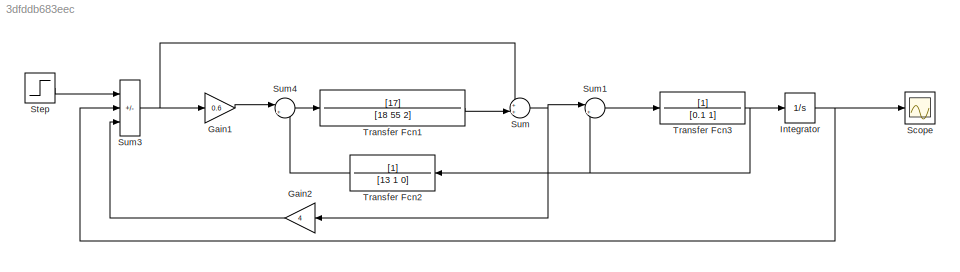
MODEL slx_3dfddb683eec
KIND model
CONFIG AbsTol = auto
CONFIG EnableMultiTasking = off
CONFIG FixedStep = auto
CONFIG MaxStep = auto
CONFIG MinStep = auto
CONFIG RelTol = 1e-3
CONFIG SampleTimeConstraint = Unconstrained
CONFIG SolverName = VariableStepAuto
CONFIG StartTime = 0.0
CONFIG StopTime = 700
BLOCK [Gain] Gain1
  Gain = 0.6
BLOCK [Gain] Gain2
  Gain = 4
  NameLocation = top
BLOCK [Integrator] Integrator
BLOCK [Scope] Scope
  Floating = off
  NumInputPorts = 1
  ScopeSpecificationString = Simulink.scopes.TimeScopeBlockCfg('CurrentConfiguration', extmgr.ConfigurationSet(extmgr.Configuration('Core','General UI',true),extmgr.Configuration('Core','Source UI',true),extmgr.Configuration('Sources','WiredSimulink',true),extmgr.Configuration('Visuals','Time Domain',true,'SerializedDisplays',{struct('MinYLimReal','-0.08845','MaxYLimReal','0.79603','YLabelReal','','MinYLimMag','0.00000','MaxY...<+1330ch>
BLOCK [Step] Step
  SampleTime = 0
BLOCK [Sum] Sum
  Inputs = ++|
BLOCK [Sum] Sum1
  Inputs = |+-
BLOCK [Sum] Sum3
  IconShape = rectangular
  Inputs = +--
BLOCK [Sum] Sum4
  Inputs = |+-
BLOCK [TransferFcn] Transfer Fcn1
  Denominator = [18 55 2]
  Numerator = [17]
BLOCK [TransferFcn] Transfer Fcn2
  Denominator = [13 1 0]
  NameLocation = top
BLOCK [TransferFcn] Transfer Fcn3
  Denominator = [0.1 1]
LINE Gain1:1 -> Sum4:1
LINE Gain2:1 -> Sum3:3
NET Integrator:1 -> Scope:1, Sum3:2
LINE Step:1 -> Sum3:1
LINE Sum1:1 -> Transfer Fcn3:1
NET Sum3:1 -> Gain1:1, Sum:1
LINE Sum4:1 -> Transfer Fcn1:1
NET Sum:1 -> Gain2:1, Sum1:1
LINE Transfer Fcn1:1 -> Sum:2
LINE Transfer Fcn2:1 -> Sum4:2
NET Transfer Fcn3:1 -> Integrator:1, Sum1:2, Transfer Fcn2:1
note: NET lines group one-source signal fan-out (src -> all destinations, sorted); 1:1 wires keep LINE
